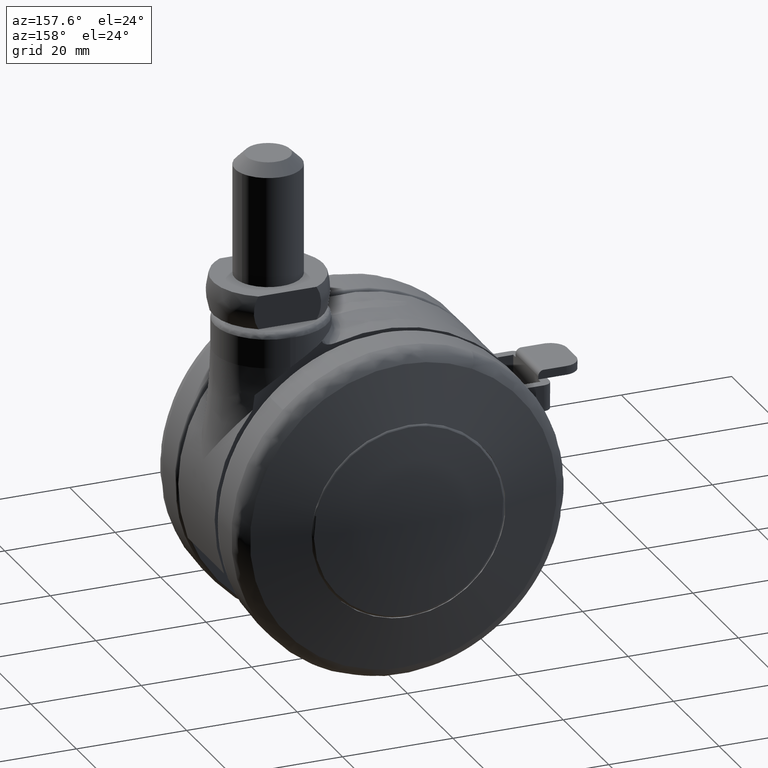
[diagram: clean part render]
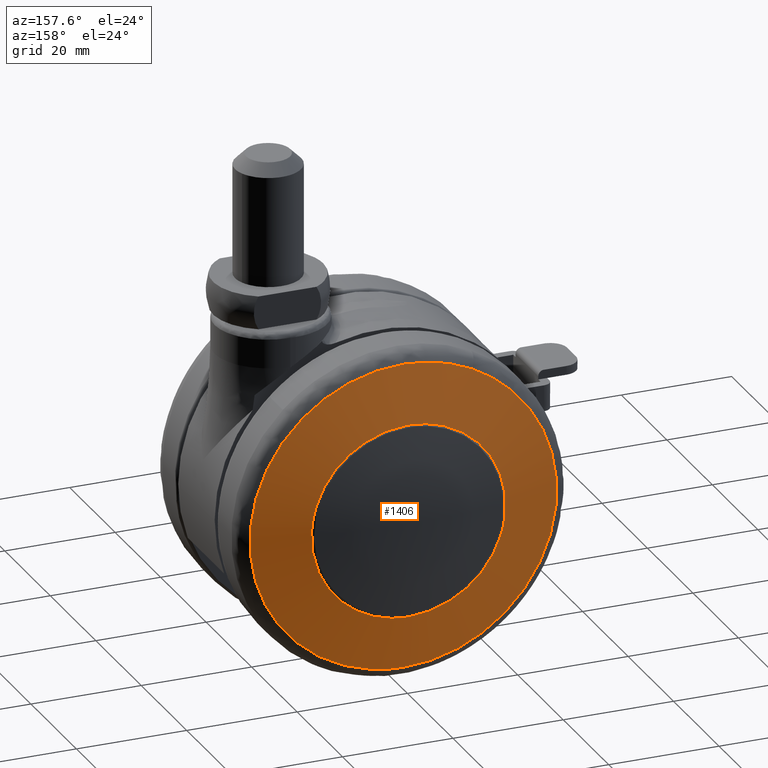
[diagram: same view with one face highlighted and labeled with its STEP entity id]
A machine part, auxiliary view. The second image highlights one B-rep face of the part: STEP entity #1406.
In plain terms, the highlighted face is a freeform B-spline surface patch.
Its self-contained STEP definition (entity closure, byte-faithful):
#66=CARTESIAN_POINT('',(17.476971164199099,-20.499999995122600,-2.077373082735466));
#67=VERTEX_POINT('',#66);
#68=CARTESIAN_POINT('',(0.0,-20.499999995122000,17.600000000000001));
#69=VERTEX_POINT('',#68);
#70=CARTESIAN_POINT('',(17.476971164199099,-20.499999995122604,-2.077373082735466));
#71=CARTESIAN_POINT('',(17.600000000000001,-20.499999995122003,-1.042329626609455));
#72=CARTESIAN_POINT('',(17.600000000000001,-20.499999995122000,-1.653219E-015));
#73=CARTESIAN_POINT('',(17.600000000000005,-20.499999995122003,17.600000000000005));
#74=CARTESIAN_POINT('',(0.0,-20.499999995122000,17.600000000000001));
#82=(BOUNDED_CURVE()B_SPLINE_CURVE(2,(#70,#71,#72,#73,#74),.UNSPECIFIED.,.F.,.U.)B_SPLINE_CURVE_WITH_KNOTS((3,2,3),(0.229562758271961,0.250000000000000,0.500000000000000),.UNSPECIFIED.)CURVE()GEOMETRIC_REPRESENTATION_ITEM()RATIONAL_B_SPLINE_CURVE((0.956027312322679,0.976056281946424,1.0,0.707106781186548,1.0))REPRESENTATION_ITEM(''));
#83=EDGE_CURVE('',#67,#69,#82,.T.);
#85=CARTESIAN_POINT('',(-17.567173101981471,-20.499999995121669,1.074443672281377));
#86=VERTEX_POINT('',#85);
#87=CARTESIAN_POINT('',(0.0,-20.499999995122000,17.600000000000001));
#88=CARTESIAN_POINT('',(-16.556436808548611,-20.499999995121996,17.599999999999998));
#89=CARTESIAN_POINT('',(-17.567173101981464,-20.499999995121666,1.074443672281377));
#97=(BOUNDED_CURVE()B_SPLINE_CURVE(2,(#87,#88,#89),.UNSPECIFIED.,.F.,.U.)B_SPLINE_CURVE_WITH_KNOTS((3,3),(0.500000000000000,0.739333066587532),.UNSPECIFIED.)CURVE()GEOMETRIC_REPRESENTATION_ITEM()RATIONAL_B_SPLINE_CURVE((1.0,0.719603871034734,0.976072265305709))REPRESENTATION_ITEM(''));
#98=EDGE_CURVE('',#69,#86,#97,.T.);
#169=CARTESIAN_POINT('',(0.0,-20.499999995122000,-17.600000000000001));
#170=VERTEX_POINT('',#169);
#171=CARTESIAN_POINT('',(0.0,-20.499999995122000,-17.600000000000001));
#172=CARTESIAN_POINT('',(15.631898180564157,-20.499999995121996,-17.600000000000001));
#173=CARTESIAN_POINT('',(17.476971164199099,-20.499999995122604,-2.077373082735466));
#181=(BOUNDED_CURVE()B_SPLINE_CURVE(2,(#171,#172,#173),.UNSPECIFIED.,.F.,.U.)B_SPLINE_CURVE_WITH_KNOTS((3,3),(0.0,0.229562758271961),.UNSPECIFIED.)CURVE()GEOMETRIC_REPRESENTATION_ITEM()RATIONAL_B_SPLINE_CURVE((1.0,0.731050499240124,0.956027312322679))REPRESENTATION_ITEM(''));
#182=EDGE_CURVE('',#170,#67,#181,.T.);
#216=CARTESIAN_POINT('',(-17.567173101981464,-20.499999995121666,1.074443672281377));
#217=CARTESIAN_POINT('',(-17.600000000000005,-20.499999995121996,0.537723307395684));
#218=CARTESIAN_POINT('',(-17.600000000000001,-20.499999995122000,-1.653219E-015));
#219=CARTESIAN_POINT('',(-17.600000000000005,-20.499999995122003,-17.600000000000005));
#220=CARTESIAN_POINT('',(0.0,-20.499999995122000,-17.600000000000001));
#228=(BOUNDED_CURVE()B_SPLINE_CURVE(2,(#216,#217,#218,#219,#220),.UNSPECIFIED.,.F.,.U.)B_SPLINE_CURVE_WITH_KNOTS((3,2,3),(0.739333066587532,0.750000000000000,1.0),.UNSPECIFIED.)CURVE()GEOMETRIC_REPRESENTATION_ITEM()RATIONAL_B_SPLINE_CURVE((0.976072265305709,0.987502910151813,1.0,0.707106781186548,1.0))REPRESENTATION_ITEM(''));
#229=EDGE_CURVE('',#86,#170,#228,.T.);
#1249=CARTESIAN_POINT('',(12.453677529060590,-18.215151406181331,24.856679948153761));
#1250=VERTEX_POINT('',#1249);
#1251=CARTESIAN_POINT('',(0.0,-18.215151576069498,27.801953607345450));
#1252=VERTEX_POINT('',#1251);
#1253=CARTESIAN_POINT('',(12.453677529060588,-18.215151406181327,24.856679948153754));
#1254=CARTESIAN_POINT('',(6.575114882526570,-18.215151576069495,27.801953607345453));
#1255=CARTESIAN_POINT('',(0.0,-18.215151576069498,27.801953607345450));
#1263=(BOUNDED_CURVE()B_SPLINE_CURVE(2,(#1253,#1254,#1255),.UNSPECIFIED.,.F.,.U.)B_SPLINE_CURVE_WITH_KNOTS((3,3),(0.423845389613473,0.500000000000000),.UNSPECIFIED.)CURVE()GEOMETRIC_REPRESENTATION_ITEM()RATIONAL_B_SPLINE_CURVE((0.875915174756147,0.910779324145623,1.0))REPRESENTATION_ITEM(''));
#1264=EDGE_CURVE('',#1250,#1252,#1263,.T.);
#1284=CARTESIAN_POINT('',(26.648778265885468,-18.215151407230032,-7.924092299326750));
#1285=VERTEX_POINT('',#1284);
#1299=CARTESIAN_POINT('',(0.0,-18.215151576069498,-27.801953607345450));
#1300=VERTEX_POINT('',#1299);
#1301=CARTESIAN_POINT('',(0.0,-18.215151576069498,-27.801953607345450));
#1302=CARTESIAN_POINT('',(20.738038010906259,-18.215151576069506,-27.801953607345450));
#1303=CARTESIAN_POINT('',(26.648778265885472,-18.215151407230032,-7.924092299326750));
#1311=(BOUNDED_CURVE()B_SPLINE_CURVE(2,(#1301,#1302,#1303),.UNSPECIFIED.,.F.,.U.)B_SPLINE_CURVE_WITH_KNOTS((3,3),(0.0,0.201473337935268),.UNSPECIFIED.)CURVE()GEOMETRIC_REPRESENTATION_ITEM()RATIONAL_B_SPLINE_CURVE((1.0,0.763959302188195,0.908365862590105))REPRESENTATION_ITEM(''));
#1312=EDGE_CURVE('',#1300,#1285,#1311,.T.);
#1314=CARTESIAN_POINT('',(0.0,-18.215151576069498,27.801953607345450));
#1315=CARTESIAN_POINT('',(-27.801953607345439,-18.215151576069495,27.801953607345439));
#1316=CARTESIAN_POINT('',(-27.801953607345450,-18.215151576069498,-1.653219E-015));
#1317=CARTESIAN_POINT('',(-27.801953607345439,-18.215151576069495,-27.801953607345439));
#1318=CARTESIAN_POINT('',(0.0,-18.215151576069498,-27.801953607345450));
#1326=(BOUNDED_CURVE()B_SPLINE_CURVE(2,(#1314,#1315,#1316,#1317,#1318),.UNSPECIFIED.,.F.,.U.)B_SPLINE_CURVE_WITH_KNOTS((3,2,3),(0.500000000000000,0.750000000000000,1.0),.UNSPECIFIED.)CURVE()GEOMETRIC_REPRESENTATION_ITEM()RATIONAL_B_SPLINE_CURVE((1.0,0.707106781186548,1.0,0.707106781186548,1.0))REPRESENTATION_ITEM(''));
#1327=EDGE_CURVE('',#1252,#1300,#1326,.T.);
#1349=CARTESIAN_POINT('',(26.648778265885468,-18.215151407230021,-7.924092299326751));
#1350=CARTESIAN_POINT('',(27.801953607345450,-18.215151576069495,-4.045955657408086));
#1351=CARTESIAN_POINT('',(27.801953607345450,-18.215151576069498,-1.653219E-015));
#1352=CARTESIAN_POINT('',(27.801953607345446,-18.215151576069506,17.166896753627622));
#1353=CARTESIAN_POINT('',(12.453677529060586,-18.215151406181324,24.856679948153765));
#1361=(BOUNDED_CURVE()B_SPLINE_CURVE(2,(#1349,#1350,#1351,#1352,#1353),.UNSPECIFIED.,.F.,.U.)B_SPLINE_CURVE_WITH_KNOTS((3,2,3),(0.201473337935268,0.250000000000000,0.423845389613473),.UNSPECIFIED.)CURVE()GEOMETRIC_REPRESENTATION_ITEM()RATIONAL_B_SPLINE_CURVE((0.908365862590105,0.943147478998352,1.0,0.796327457040925,0.875915174756147))REPRESENTATION_ITEM(''));
#1362=EDGE_CURVE('',#1285,#1250,#1361,.T.);
#1370=CARTESIAN_POINT('',(-29.809327307294737,-13.072937862196540,-29.809394484519281));
#1371=CARTESIAN_POINT('',(-15.231509735195463,-17.438577366083301,-30.463088120752563));
#1372=CARTESIAN_POINT('',(15.230824602223839,-17.438577366083301,-30.463088120752563));
#1373=CARTESIAN_POINT('',(29.808043987401366,-13.073322170776407,-29.809452029369886));
#1374=CARTESIAN_POINT('',(-30.463022481277982,-17.438597474091434,-15.231545565823192));
#1375=CARTESIAN_POINT('',(-15.573013680460109,-21.999999999999972,-15.573048775241899));
#1376=CARTESIAN_POINT('',(15.572313186200150,-21.999999999999972,-15.573048775241899));
#1377=CARTESIAN_POINT('',(30.461712308713469,-17.438998822670261,-15.231575613999606));
#1378=CARTESIAN_POINT('',(-30.463022481277982,-17.438597474091434,15.231547623658559));
#1379=CARTESIAN_POINT('',(-15.573013680460109,-21.999999999999972,15.573050879215550));
#1380=CARTESIAN_POINT('',(15.572313186200160,-21.999999999999972,15.573050879215540));
#1381=CARTESIAN_POINT('',(30.461712308713469,-17.438998822670261,15.231577671839021));
#1382=CARTESIAN_POINT('',(-29.809327134452012,-13.072936707877846,29.809398339030164));
#1383=CARTESIAN_POINT('',(-15.231509644942253,-17.438576160583139,30.463092055916043));
#1384=CARTESIAN_POINT('',(15.230824511974690,-17.438576160583139,30.463092055916032));
#1385=CARTESIAN_POINT('',(29.808043814565718,-13.073321016453241,29.809455883887832));
#1393=(BOUNDED_SURFACE()B_SPLINE_SURFACE(2,2,((#1370,#1374,#1378,#1382),(#1371,#1375,#1379,#1383),(#1372,#1376,#1380,#1384),(#1373,#1377,#1381,#1385)),.UNSPECIFIED.,.F.,.F.,.U.)B_SPLINE_SURFACE_WITH_KNOTS((3,1,3),(3,1,3),(22.879937403011319,52.980574481842218,83.079857595157620),(22.879869569301601,52.980574481842218,83.081283461093903),.UNSPECIFIED.)GEOMETRIC_REPRESENTATION_ITEM()RATIONAL_B_SPLINE_SURFACE(((1.044841671193915,1.022420785070228,1.022420785070228,1.044841677252196),(1.022420886123687,1.0,1.0,1.022420892181968),(1.022420886123687,1.0,1.0,1.022420892181968),(1.044839654207564,1.022418768083877,1.022418768083877,1.044839660265846)))REPRESENTATION_ITEM('')SURFACE());
#1394=ORIENTED_EDGE('',*,*,#1312,.T.);
#1395=ORIENTED_EDGE('',*,*,#1362,.T.);
#1396=ORIENTED_EDGE('',*,*,#1264,.T.);
#1397=ORIENTED_EDGE('',*,*,#1327,.T.);
#1398=EDGE_LOOP('',(#1394,#1395,#1396,#1397));
#1399=FACE_OUTER_BOUND('',#1398,.T.);
#1400=ORIENTED_EDGE('',*,*,#98,.F.);
#1401=ORIENTED_EDGE('',*,*,#83,.F.);
#1402=ORIENTED_EDGE('',*,*,#182,.F.);
#1403=ORIENTED_EDGE('',*,*,#229,.F.);
#1404=EDGE_LOOP('',(#1400,#1401,#1402,#1403));
#1405=FACE_BOUND('',#1404,.T.);
#1406=ADVANCED_FACE('',(#1399,#1405),#1393,.T.);